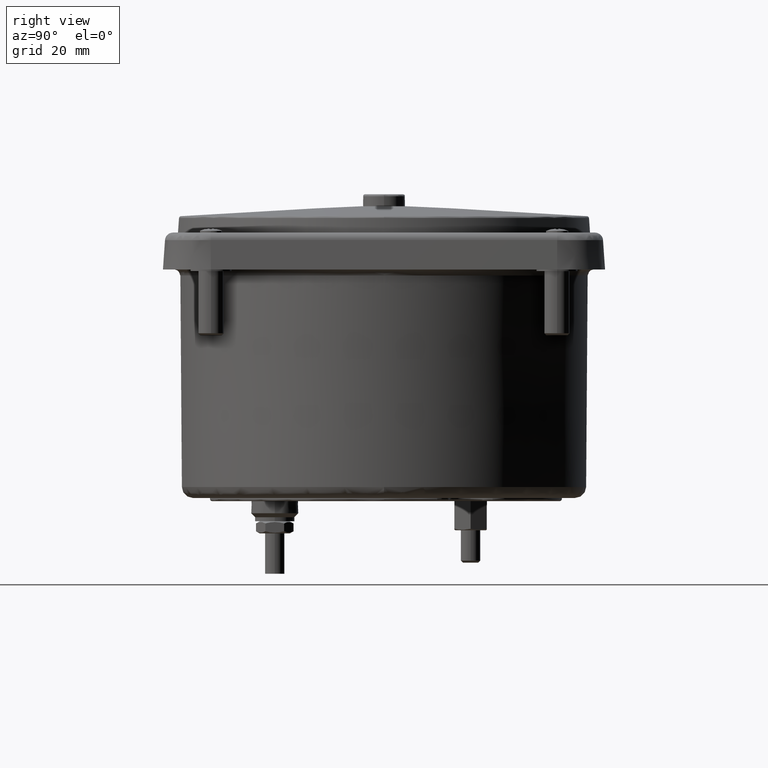
[diagram: clean part render]
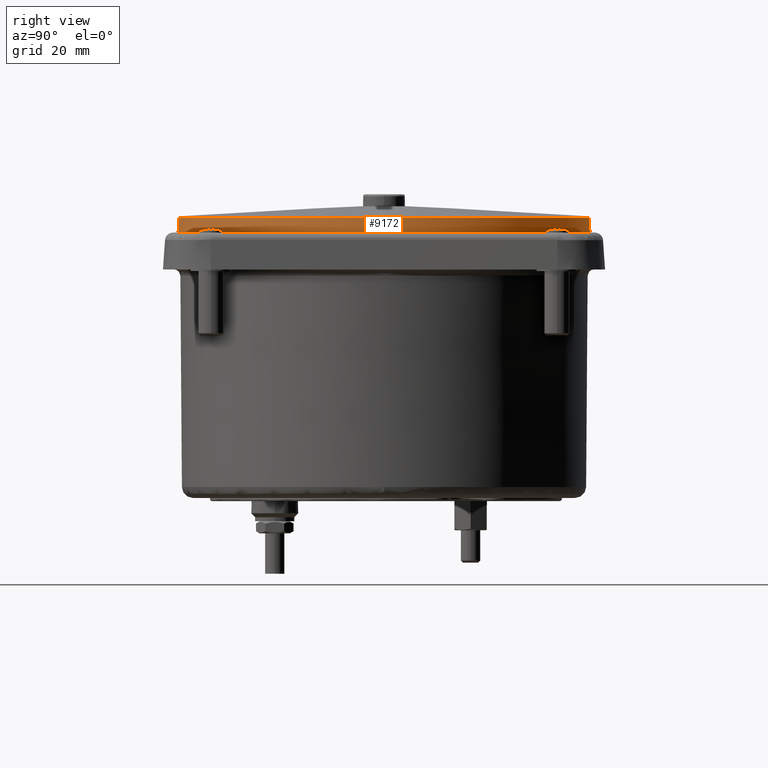
[diagram: same view with one face highlighted and labeled with its STEP entity id]
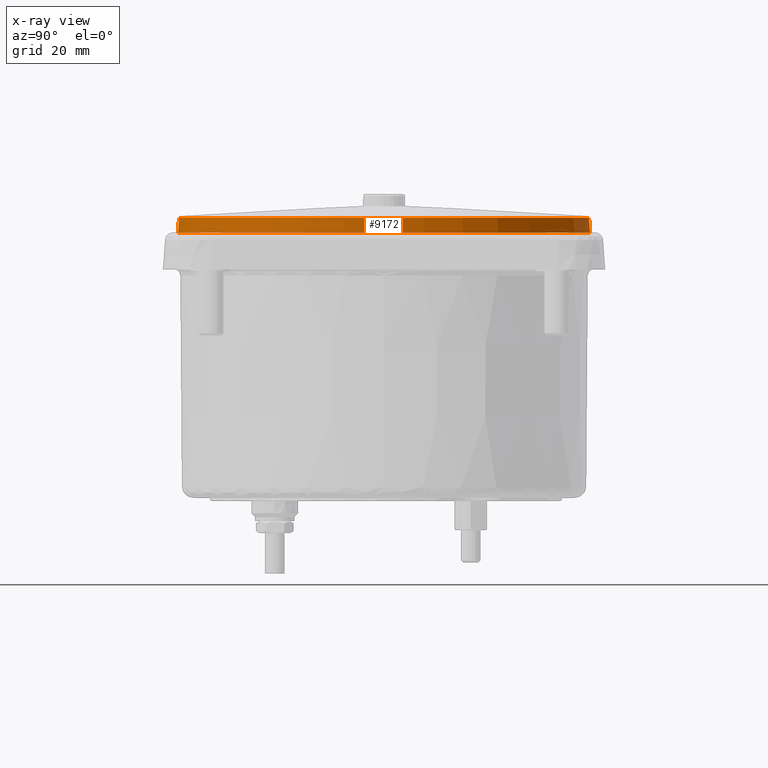
[diagram: x-ray of the same camera — body ghosted, the highlighted face saturated]
A machine part, right view. The second image highlights one B-rep face of the part: STEP entity #9172.
The next image is the same camera in x-ray: the body ghosted, the highlighted face saturated — about 0% of this face is hidden behind the body in this view.
In plain terms, the highlighted conical surface has half-angle 4 deg.
Its self-contained STEP definition (entity closure, byte-faithful):
#679 = CONICAL_SURFACE ( 'NONE', #5929, 2.006984957256527480, 0.06981316999929983169 ) ;
#963 = DIRECTION ( 'NONE',  ( 6.506258309890709121E-10, -1.000000000000000000, 8.207429549112704649E-16 ) ) ;
#1025 = LINE ( 'NONE', #17665, #2778 ) ;
#1435 = DIRECTION ( 'NONE',  ( -8.834551726382028716E-26, 0.06975647366384811476, -0.9975640502654378183 ) ) ;
#1615 = VERTEX_POINT ( 'NONE', #14693 ) ;
#1678 = ORIENTED_EDGE ( 'NONE', *, *, #5011, .F. ) ;
#1860 = AXIS2_PLACEMENT_3D ( 'NONE', #12749, #20897, #963 ) ;
#2153 = EDGE_LOOP ( 'NONE', ( #10544, #14812, #3280, #20346, #1678 ) ) ;
#2472 = VERTEX_POINT ( 'NONE', #19642 ) ;
#2778 = VECTOR ( 'NONE', #20957, 39.37007874015748143 ) ;
#3024 = VECTOR ( 'NONE', #1435, 39.37007874015748143 ) ;
#3280 = ORIENTED_EDGE ( 'NONE', *, *, #9419, .T. ) ;
#5011 = EDGE_CURVE ( 'NONE', #15932, #9566, #21678, .T. ) ;
#5135 = VERTEX_POINT ( 'NONE', #9522 ) ;
#5929 = AXIS2_PLACEMENT_3D ( 'NONE', #14805, #13371, #16681 ) ;
#6384 = CARTESIAN_POINT ( 'NONE',  ( -2.731847993658006763E-15, 1.997103705112841521, 2.571654945960823557 ) ) ;
#7032 = DIRECTION ( 'NONE',  ( 0.000000000000000000, 1.000000000000000000, 1.361170139211504745E-16 ) ) ;
#7133 = EDGE_CURVE ( 'NONE', #5135, #2472, #15482, .T. ) ;
#7493 = AXIS2_PLACEMENT_3D ( 'NONE', #20104, #11742, #10105 ) ;
#9172 = ADVANCED_FACE ( 'NONE', ( #19663 ), #679, .T. ) ;
#9419 = EDGE_CURVE ( 'NONE', #2472, #1615, #1025, .T. ) ;
#9522 = CARTESIAN_POINT ( 'NONE',  ( 1.997103705113098204, 1.299370262743358927E-09, 2.571654945960823113 ) ) ;
#9566 = VERTEX_POINT ( 'NONE', #19738 ) ;
#10105 = DIRECTION ( 'NONE',  ( 6.506258309890709121E-10, -1.000000000000000000, 8.207429549112704649E-16 ) ) ;
#10544 = ORIENTED_EDGE ( 'NONE', *, *, #20160, .T. ) ;
#10716 = CIRCLE ( 'NONE', #13519, 2.006984957256527480 ) ;
#11671 = CARTESIAN_POINT ( 'NONE',  ( -2.731847993664263613E-15, 2.006984957256530588, 2.430346456692071389 ) ) ;
#11742 = DIRECTION ( 'NONE',  ( -1.195140790058710120E-25, 1.836909531000139737E-16, -1.000000000000000000 ) ) ;
#12749 = CARTESIAN_POINT ( 'NONE',  ( -2.731847993665251661E-15, 2.733369335921590502E-15, 2.571654945960823113 ) ) ;
#13371 = DIRECTION ( 'NONE',  ( -8.856124801240861388E-26, 1.361170139211503758E-16, -1.000000000000000000 ) ) ;
#13519 = AXIS2_PLACEMENT_3D ( 'NONE', #17220, #15787, #7032 ) ;
#13683 = EDGE_CURVE ( 'NONE', #9566, #1615, #10716, .T. ) ;
#14693 = CARTESIAN_POINT ( 'NONE',  ( -2.486063223280154467E-15, -2.006984957256524815, 2.430346456692074497 ) ) ;
#14805 = CARTESIAN_POINT ( 'NONE',  ( -2.731847993664263613E-15, 2.731847993664263613E-15, 2.430346456692070944 ) ) ;
#14812 = ORIENTED_EDGE ( 'NONE', *, *, #7133, .T. ) ;
#15167 = CIRCLE ( 'NONE', #7493, 1.997103705112838856 ) ;
#15482 = CIRCLE ( 'NONE', #1860, 1.997103705112838856 ) ;
#15787 = DIRECTION ( 'NONE',  ( -8.856124801240861388E-26, 1.361170139211503758E-16, -1.000000000000000000 ) ) ;
#15932 = VERTEX_POINT ( 'NONE', #6384 ) ;
#16681 = DIRECTION ( 'NONE',  ( 0.000000000000000000, 1.000000000000000000, 1.361170139211504745E-16 ) ) ;
#17220 = CARTESIAN_POINT ( 'NONE',  ( -2.731847993664263613E-15, 2.731847993664263613E-15, 2.430346456692074941 ) ) ;
#17665 = CARTESIAN_POINT ( 'NONE',  ( -2.486063223280154467E-15, -2.006984957256524815, 2.430346456692070944 ) ) ;
#19642 = CARTESIAN_POINT ( 'NONE',  ( -2.486668275464363909E-15, -1.997103705112835970, 2.571654945960822669 ) ) ;
#19663 = FACE_OUTER_BOUND ( 'NONE', #2153, .T. ) ;
#19738 = CARTESIAN_POINT ( 'NONE',  ( -2.731847993664263613E-15, 2.006984957256530144, 2.430346456692074941 ) ) ;
#20104 = CARTESIAN_POINT ( 'NONE',  ( -2.731847993665251661E-15, 2.733369335921590502E-15, 2.571654945960823113 ) ) ;
#20160 = EDGE_CURVE ( 'NONE', #15932, #5135, #15167, .T. ) ;
#20346 = ORIENTED_EDGE ( 'NONE', *, *, #13683, .F. ) ;
#20897 = DIRECTION ( 'NONE',  ( -1.195140790058710120E-25, 1.836909531000139737E-16, -1.000000000000000000 ) ) ;
#20957 = DIRECTION ( 'NONE',  ( 8.542704130878289973E-18, -0.06975647366384783721, -0.9975640502654378183 ) ) ;
#21678 = LINE ( 'NONE', #11671, #3024 ) ;